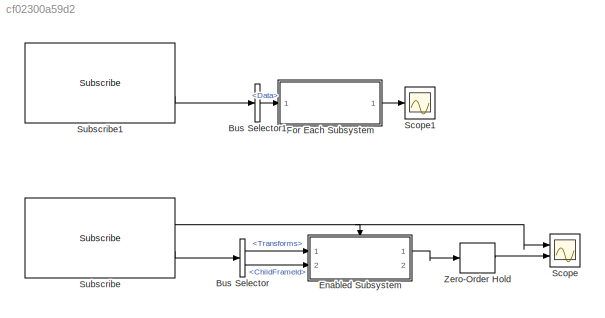
MODEL slx_cf02300a59d2
KIND model
CONFIG AbsTol = auto
CONFIG EnableMultiTasking = off
CONFIG FixedStep = auto
CONFIG MaxStep = auto
CONFIG MinStep = auto
CONFIG RelTol = 1e-3
CONFIG SampleTimeConstraint = Unconstrained
CONFIG SolverName = FixedStepAuto
CONFIG StartTime = 0.0
CONFIG StopTime = Inf
BLOCK [BusSelector] Bus Selector
  OutputSignals = Transforms,Transforms.ChildFrameId
  Ports = [1, 2]
BLOCK [BusSelector] Bus Selector1
  OutputSignals = Data
  Ports = [1, 1]
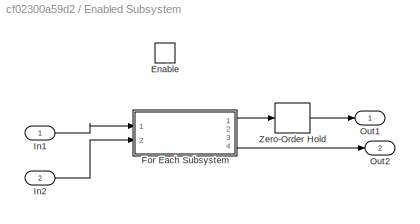
BLOCK [SubSystem] Enabled Subsystem
  Ports = [2, 2, 1]
  RequestExecContextInheritance = off
  TreatAsAtomicUnit = on
BLOCK [EnablePort] Enabled Subsystem/Enable
  Ports = []
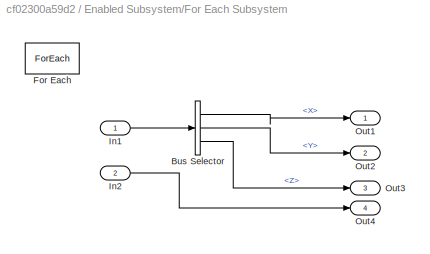
BLOCK [SubSystem] Enabled Subsystem/For Each Subsystem
  Ports = [2, 4]
  RequestExecContextInheritance = off
  TreatAsAtomicUnit = on
BLOCK [BusSelector] Enabled Subsystem/For Each Subsystem/Bus Selector
  OutputSignals = Transform.Translation.X,Transform.Translation.Y,Transform.Translation.Z
  Ports = [1, 3]
BLOCK [ForEach] Enabled Subsystem/For Each Subsystem/For Each
  DisableCoverage = on
  Ports = []
  SpecifiedNumIters = 3
BLOCK [Inport] Enabled Subsystem/For Each Subsystem/In1
  Partition = on
  PartitionDimension = 1
  PartitionOffset = 0
  PartitionWidth = 1
BLOCK [Inport] Enabled Subsystem/For Each Subsystem/In2
  Port = 2
BLOCK [Outport] Enabled Subsystem/For Each Subsystem/Out1
  ConcatenationDimension = 1
BLOCK [Outport] Enabled Subsystem/For Each Subsystem/Out2
  ConcatenationDimension = 1
  Port = 2
BLOCK [Outport] Enabled Subsystem/For Each Subsystem/Out3
  ConcatenationDimension = 1
  Port = 3
BLOCK [Outport] Enabled Subsystem/For Each Subsystem/Out4
  ConcatenationDimension = 1
  Port = 4
BLOCK [Inport] Enabled Subsystem/In1
BLOCK [Inport] Enabled Subsystem/In2
  Port = 2
BLOCK [Outport] Enabled Subsystem/Out1
BLOCK [Outport] Enabled Subsystem/Out2
  Port = 2
BLOCK [ZeroOrderHold] Enabled Subsystem/Zero-Order Hold
  SampleTime = -1
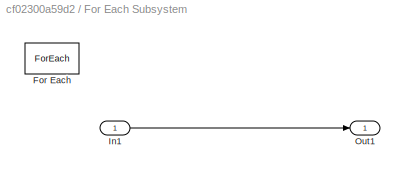
BLOCK [SubSystem] For Each Subsystem
  Ports = [1, 1]
  RequestExecContextInheritance = off
  TreatAsAtomicUnit = on
BLOCK [ForEach] For Each Subsystem/For Each
  DisableCoverage = on
  Ports = []
  SpecifiedNumIters = 4
BLOCK [Inport] For Each Subsystem/In1
  Partition = on
  PartitionDimension = 1
  PartitionOffset = 0
  PartitionWidth = 1
BLOCK [Outport] For Each Subsystem/Out1
  ConcatenationDimension = 1
BLOCK [Scope] Scope
  Floating = off
  NumInputPorts = 2
  Ports = [2]
  ScopeSpecificationString = Simulink.scopes.TimeScopeBlockCfg('CurrentConfiguration', extmgr.ConfigurationSet(extmgr.Configuration('Core','General UI',true),extmgr.Configuration('Core','Source UI',true),extmgr.Configuration('Sources','WiredSimulink',true),extmgr.Configuration('Visuals','Time Domain',true,'SerializedDisplays',{struct('MinYLimReal','-0.94654','MaxYLimReal','1.21628','YLabelReal','','MinYLimMag','0.00000','MaxY...<+1720ch>
BLOCK [Scope] Scope1
  Floating = off
  NumInputPorts = 1
  Ports = [1]
  ScopeSpecificationString = Simulink.scopes.TimeScopeBlockCfg('CurrentConfiguration', extmgr.ConfigurationSet(extmgr.Configuration('Core','General UI',true),extmgr.Configuration('Core','Source UI',true),extmgr.Configuration('Sources','WiredSimulink',true,'DataLoggingVariableName','ScopeData1'),extmgr.Configuration('Visuals','Time Domain',true,'SerializedDisplays',{struct('MinYLimReal','4.9308','MaxYLimReal','5.91997','YLabel...<+1797ch>
BLOCK [Reference] Subscribe  REF=robotlib/Subscribe
  Ports = [0, 2]
  SourceBlock = robotlib/Subscribe
  SourceProductBaseCode = RR
  SourceType = ROS Subscribe
BLOCK [Reference] Subscribe1  REF=robotlib/Subscribe
  Ports = [0, 2]
  SourceBlock = robotlib/Subscribe
  SourceProductBaseCode = RR
  SourceType = ROS Subscribe
BLOCK [ZeroOrderHold] Zero-Order Hold
  SampleTime = -1
LINE Bus Selector1:1 -> For Each Subsystem:1
LINE Bus Selector:1 -> Enabled Subsystem:1
LINE Bus Selector:2 -> Enabled Subsystem:2
LINE Enabled Subsystem/For Each Subsystem/Bus Selector:1 -> Enabled Subsystem/For Each Subsystem/Out1:1
LINE Enabled Subsystem/For Each Subsystem/Bus Selector:2 -> Enabled Subsystem/For Each Subsystem/Out2:1
LINE Enabled Subsystem/For Each Subsystem/Bus Selector:3 -> Enabled Subsystem/For Each Subsystem/Out3:1
LINE Enabled Subsystem/For Each Subsystem/In1:1 -> Enabled Subsystem/For Each Subsystem/Bus Selector:1
LINE Enabled Subsystem/For Each Subsystem/In2:1 -> Enabled Subsystem/For Each Subsystem/Out4:1
LINE Enabled Subsystem/For Each Subsystem:1 -> Enabled Subsystem/Zero-Order Hold:1
LINE Enabled Subsystem/For Each Subsystem:4 -> Enabled Subsystem/Out2:1
LINE Enabled Subsystem/In1:1 -> Enabled Subsystem/For Each Subsystem:1
LINE Enabled Subsystem/In2:1 -> Enabled Subsystem/For Each Subsystem:2
LINE Enabled Subsystem/Zero-Order Hold:1 -> Enabled Subsystem/Out1:1
LINE Enabled Subsystem:1 -> Zero-Order Hold:1
LINE For Each Subsystem/In1:1 -> For Each Subsystem/Out1:1
LINE For Each Subsystem:1 -> Scope1:1
LINE Subscribe1:2 -> Bus Selector1:1
NET Subscribe:1 -> Enabled Subsystem:enable, Scope:1
LINE Subscribe:2 -> Bus Selector:1
LINE Zero-Order Hold:1 -> Scope:2
note: NET lines group one-source signal fan-out (src -> all destinations, sorted); 1:1 wires keep LINE
